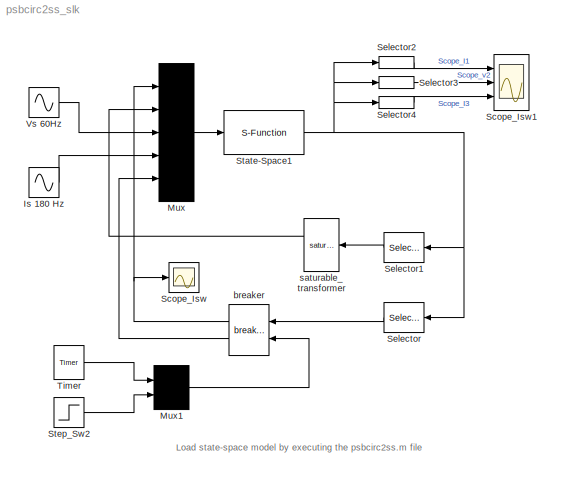
MODEL psbcirc2ss_slk
KIND model
BLOCK [Sin] Is 180 Hz
  Amplitude = 2
  Frequency = 2*pi*180
  Phase = -30*pi/180
  Ports = [0, 1]
  SampleTime = 0
  SineType = Time based
BLOCK [Mux] Mux
  Inputs = [2 1 1 1 2]
  Ports = [5, 1]
BLOCK [Mux] Mux1
  Inputs = 2
  Ports = [2, 1]
BLOCK [Scope] Scope_Isw
  DataFormat = Array
  NumInputPorts = 1
  Ports = [1]
  TickLabels = on
  TimeRange = 0.0001
  YMax = 1
  YMin = -1
  ZoomMode = xonly
BLOCK [Scope] Scope_Isw1
  DataFormat = Array
  NumInputPorts = 3
  Ports = [3]
  TickLabels = on
  TimeRange = 0.25
  YMax = 10~200~200
  YMin = -20~-400~-400
  ZoomMode = yonly
BLOCK [Selector] Selector
  Elements = [1 2]
  InputPortWidth = 8
  Ports = [1, 1]
BLOCK [Selector] Selector1
  Elements = 5
  InputPortWidth = 8
  Ports = [1, 1]
BLOCK [Selector] Selector2
  Elements = 6
  InputPortWidth = 8
  Ports = [1, 1]
BLOCK [Selector] Selector3
  Elements = 7
  InputPortWidth = 8
  Ports = [1, 1]
BLOCK [Selector] Selector4
  Elements = 8
  InputPortWidth = 8
  Ports = [1, 1]
BLOCK [S-Function] State-Space1
  FunctionName = sfun_psbcontc
  MaskIconFrame = on
  MaskIconOpaque = on
  MaskIconRotate = none
  MaskIconUnits = autoscale
  Parameters = A,B,C,D,x0,[0.1;0.1],y
  Ports = [1, 1]
BLOCK [Step] Step_Sw2
  SampleTime = 0
  Time = 0.05
BLOCK [Reference] Timer  REF=powerlib_extras/Control \nBlocks/Timer
  Ports = [0, 1]
  SourceBlock = powerlib_extras/Control \nBlocks/Timer
  SourceType = Timer
  e = [1 0 1 ]
  t = [0 100e-3 130e-3]
BLOCK [Sin] Vs 60Hz
  Amplitude = 100
  Frequency = 2*pi*60
  Ports = [0, 1]
  SampleTime = 0
  SineType = Time based
BLOCK [Reference] breaker  REF=powerlib_models/Continuous/breaker
  Nsw = 2
  Ports = [2, 2]
  Rsw = 1
  SourceBlock = powerlib_models/Continuous/breaker
  SourceType = Unknown
  istate = 0
BLOCK [Reference] saturable_transformer  REF=powerlib_models/Continuous/saturable_transformer
  Ports = [1, 2]
  SourceBlock = powerlib_models/Continuous/saturable_transformer
  SourceType = Saturable transformer model
  fluxinit = -0.270695162980763
  isat = [-141.42135623731 -0.14142135623731 0.14142135623731 141.42135623731]
  phisat = [-0.487671337918433 -0.450158158078553 0.450158158078553 0.487671337918433]
ANNOTATION (root): Load state-space model by executing the psbcirc2ss.m file
LINE Is 180 Hz:1 -> Mux:4
LINE Mux1:1 -> breaker:2
LINE Mux:1 -> State-Space1:1
LINE Selector1:1 -> saturable_transformer:1
LINE Selector2:1 -> Scope_Isw1:1
LINE Selector3:1 -> Scope_Isw1:2
LINE Selector4:1 -> Scope_Isw1:3
LINE Selector:1 -> breaker:1
NET State-Space1:1 -> Selector1:1, Selector2:1, Selector3:1, Selector4:1, Selector:1
LINE Step_Sw2:1 -> Mux1:2
LINE Timer:1 -> Mux1:1
LINE Vs 60Hz:1 -> Mux:3
NET breaker:1 -> Mux:1, Scope_Isw:1
LINE breaker:2 -> Mux:5
LINE saturable_transformer:1 -> Mux:2
note: NET lines group one-source signal fan-out (src -> all destinations, sorted); 1:1 wires keep LINE
